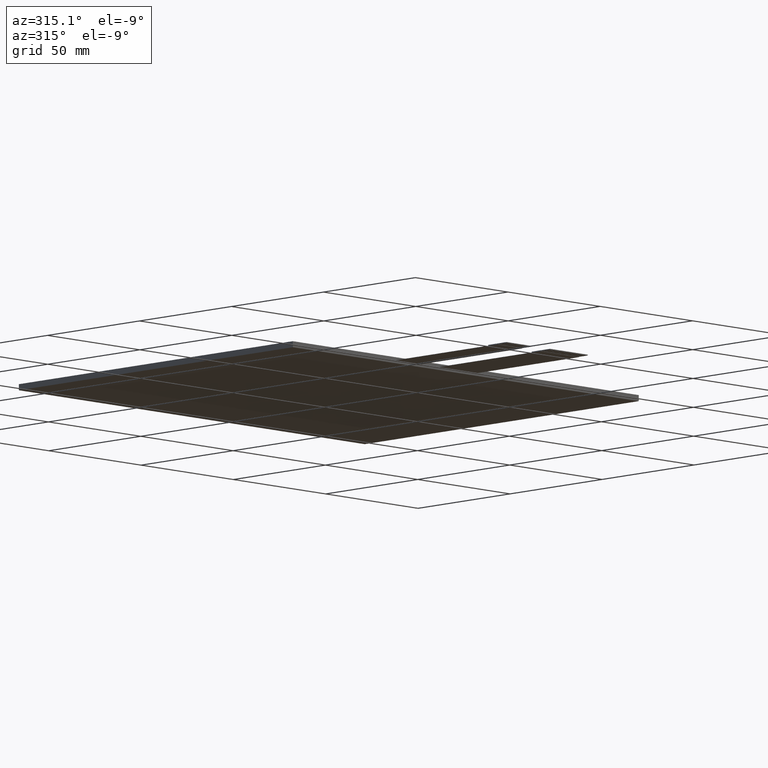
[diagram: clean part render]
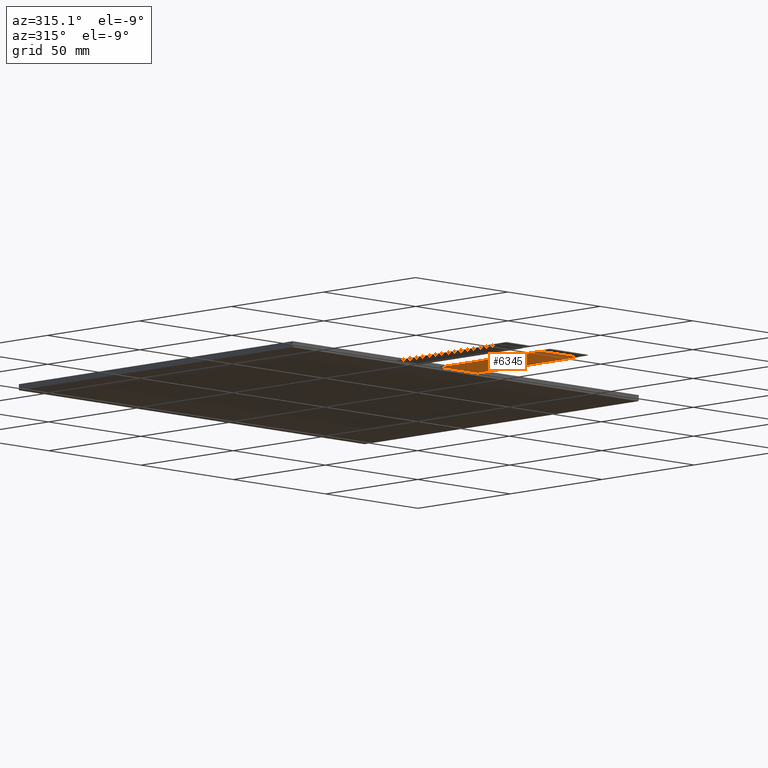
[diagram: same view with one face highlighted and labeled with its STEP entity id]
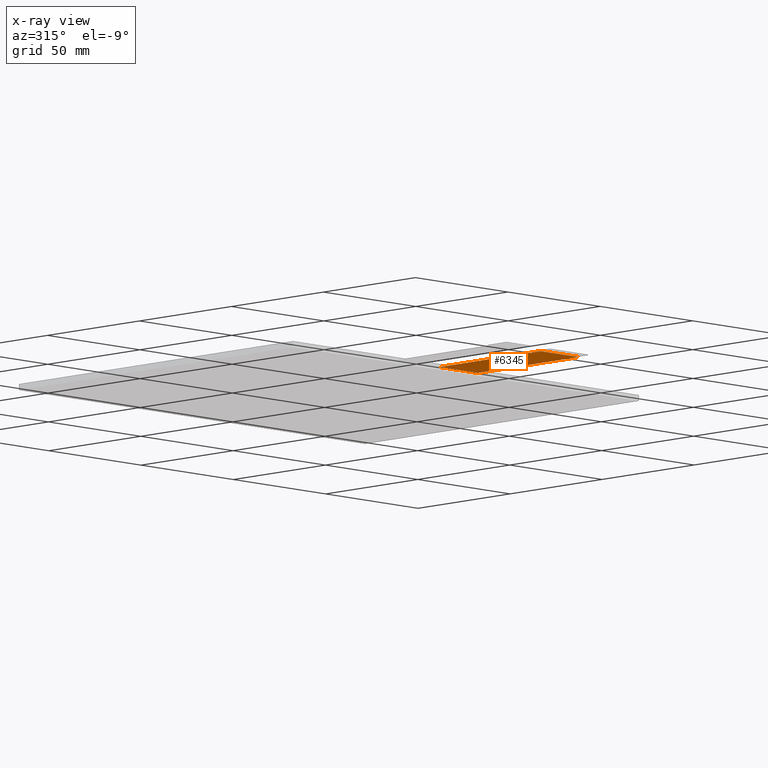
[diagram: x-ray of the same camera — body ghosted, the highlighted face saturated]
A machine part, auxiliary view. The second image highlights one B-rep face of the part: STEP entity #6345.
The next image is the same camera in x-ray: the body ghosted, the highlighted face saturated — about 0% of this face is hidden behind the body in this view.
In plain terms, the highlighted planar face has unit normal (0, 0, -1).
Its self-contained STEP definition (entity closure, byte-faithful):
#407=PLANE('',#6675);
#709=FACE_OUTER_BOUND('',#1011,.T.);
#1011=EDGE_LOOP('',(#5959,#5960,#5961,#5962));
#1854=LINE('',#9856,#2734);
#1860=LINE('',#9867,#2740);
#1869=LINE('',#9886,#2749);
#1873=LINE('',#9893,#2753);
#2734=VECTOR('',#8082,10.);
#2740=VECTOR('',#8090,10.);
#2749=VECTOR('',#8109,10.);
#2753=VECTOR('',#8117,10.);
#3357=VERTEX_POINT('',#9853);
#3358=VERTEX_POINT('',#9855);
#3362=VERTEX_POINT('',#9865);
#3367=VERTEX_POINT('',#9885);
#4222=EDGE_CURVE('',#3358,#3357,#1854,.T.);
#4228=EDGE_CURVE('',#3357,#3362,#1860,.T.);
#4237=EDGE_CURVE('',#3367,#3358,#1869,.T.);
#4241=EDGE_CURVE('',#3367,#3362,#1873,.T.);
#5959=ORIENTED_EDGE('',*,*,#4222,.T.);
#5960=ORIENTED_EDGE('',*,*,#4228,.T.);
#5961=ORIENTED_EDGE('',*,*,#4241,.F.);
#5962=ORIENTED_EDGE('',*,*,#4237,.T.);
#6345=ADVANCED_FACE('',(#709),#407,.T.);
#6675=AXIS2_PLACEMENT_3D('',#9892,#8115,#8116);
#8082=DIRECTION('',(-1.,0.,0.));
#8090=DIRECTION('',(-4.81096644004234E-16,1.,0.));
#8109=DIRECTION('',(1.85037170770859E-16,-1.,0.));
#8115=DIRECTION('center_axis',(0.,0.,-1.));
#8116=DIRECTION('ref_axis',(-1.,0.,0.));
#8117=DIRECTION('',(-1.,-1.42260291462914E-16,0.));
#9853=CARTESIAN_POINT('',(-14.55,-132.,-1.2));
#9855=CARTESIAN_POINT('',(5.95000000000003,-132.,-1.2));
#9856=CARTESIAN_POINT('',(0.825000000000021,-132.,-1.2));
#9865=CARTESIAN_POINT('',(-14.55,-77.,-1.2));
#9867=CARTESIAN_POINT('',(-14.55,-77.,-1.2));
#9885=CARTESIAN_POINT('',(5.95000000000002,-77.,-1.2));
#9886=CARTESIAN_POINT('',(5.95000000000003,-137.,-1.2));
#9892=CARTESIAN_POINT('Origin',(-4.29999999999999,-107.,-1.2));
#9893=CARTESIAN_POINT('',(44.475,-77.,-1.2));